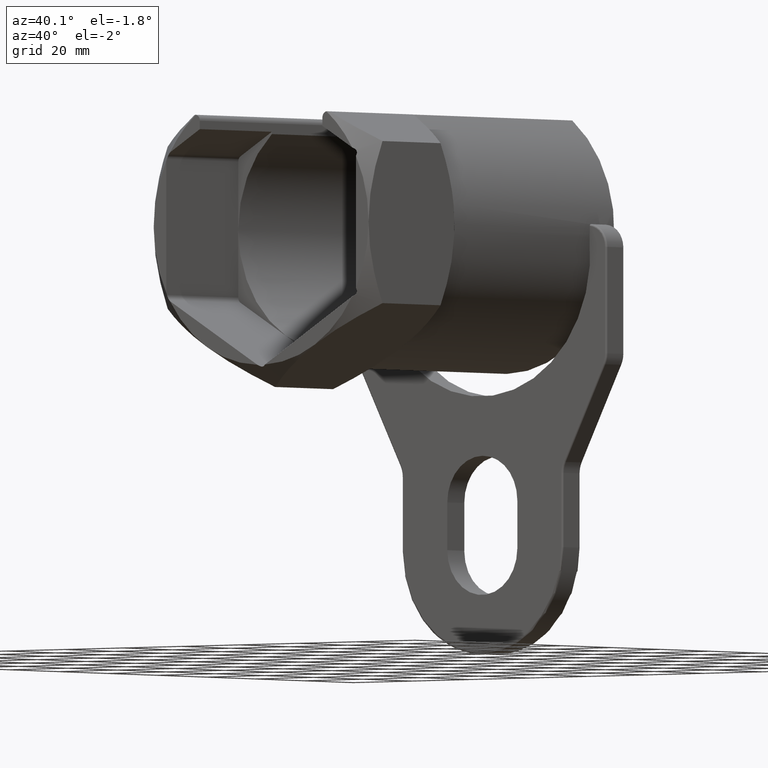
[diagram: clean part render]
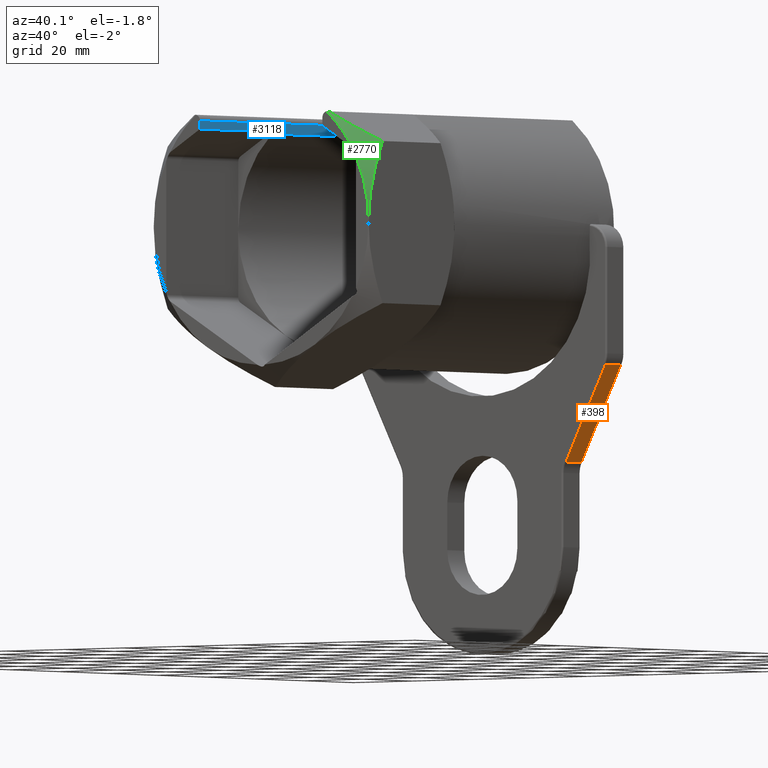
[diagram: same view with three faces highlighted in distinct colors, each labeled with its STEP entity id]
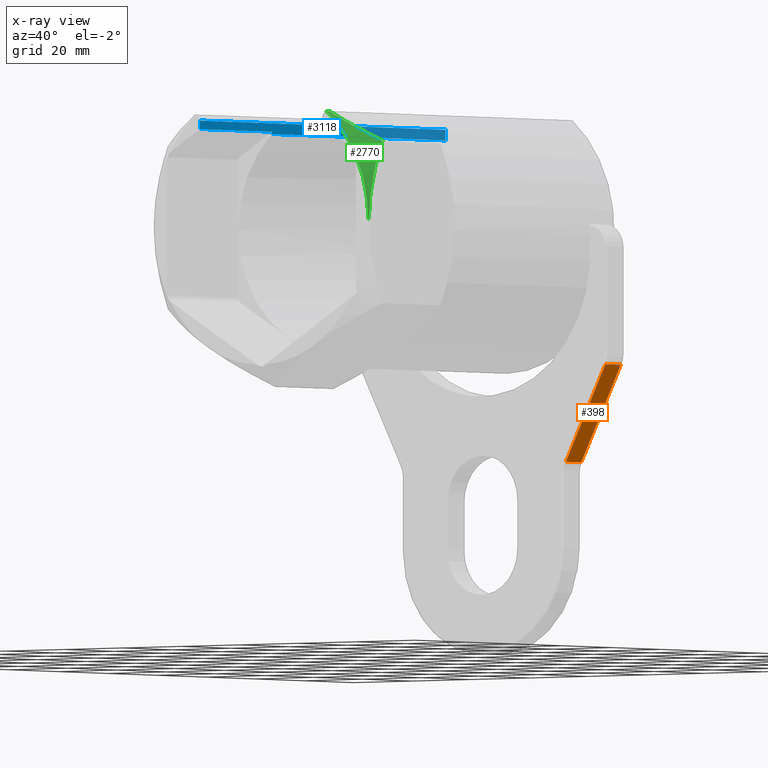
[diagram: x-ray of the same camera — body ghosted, the three highlighted faces saturated]
A machine part, auxiliary view with three faces highlighted in distinct colors.
The next image is the same camera in x-ray (body ghosted, the three faces saturated) — at least one of them is partly hidden behind the body in this view.
Their STEP definitions:

[orange] entity #398 — the highlighted planar face has unit normal (-0.8815, 0, 0.4722).
#361 = EDGE_CURVE ( 'NONE', #375, #376, #1280, .T. ) ;
#375 = VERTEX_POINT ( 'NONE', #1303 ) ;
#376 = VERTEX_POINT ( 'NONE', #1302 ) ;
#381 = ORIENTED_EDGE ( 'NONE', *, *, #387, .F. ) ;
#382 = ORIENTED_EDGE ( 'NONE', *, *, #392, .T. ) ;
#387 = EDGE_CURVE ( 'NONE', #388, #389, #1286, .T. ) ;
#388 = VERTEX_POINT ( 'NONE', #1282 ) ;
#389 = VERTEX_POINT ( 'NONE', #1281 ) ;
#392 = EDGE_CURVE ( 'NONE', #388, #375, #1347, .T. ) ;
#393 = EDGE_CURVE ( 'NONE', #376, #389, #1343, .T. ) ;
#394 = ORIENTED_EDGE ( 'NONE', *, *, #361, .T. ) ;
#396 = EDGE_LOOP ( 'NONE', ( #381, #382, #394, #397 ) ) ;
#397 = ORIENTED_EDGE ( 'NONE', *, *, #393, .T. ) ;
#398 = ADVANCED_FACE ( 'NONE', ( #1335 ), #1334, .F. ) ;
#1277 = DIRECTION ( 'NONE',  ( 0.0000000000000000000, -1.000000000000000000, 0.0000000000000000000 ) ) ;
#1278 = VECTOR ( 'NONE', #1277, 1000.000000000000000 ) ;
#1279 = CARTESIAN_POINT ( 'NONE',  ( 41.77702781717557900, 97.19999999999998900, -35.34954807460559300 ) ) ;
#1280 = LINE ( 'NONE', #1279, #1278 ) ;
#1281 = CARTESIAN_POINT ( 'NONE',  ( 28.22297218282443200, 90.50000000000000000, -60.65045192539439300 ) ) ;
#1282 = CARTESIAN_POINT ( 'NONE',  ( 28.22297218282443200, 96.69999999999998900, -60.65045192539439300 ) ) ;
#1283 = DIRECTION ( 'NONE',  ( 0.0000000000000000000, -1.000000000000000000, 0.0000000000000000000 ) ) ;
#1284 = VECTOR ( 'NONE', #1283, 1000.000000000000000 ) ;
#1285 = CARTESIAN_POINT ( 'NONE',  ( 28.22297218282443200, 97.19999999999998900, -60.65045192539439300 ) ) ;
#1286 = LINE ( 'NONE', #1285, #1284 ) ;
#1302 = CARTESIAN_POINT ( 'NONE',  ( 41.77702781717557900, 90.50000000000000000, -35.34954807460559300 ) ) ;
#1303 = CARTESIAN_POINT ( 'NONE',  ( 41.77702781717557900, 96.69999999999998900, -35.34954807460559300 ) ) ;
#1330 = DIRECTION ( 'NONE',  ( 0.4722214125154191000, 0.0000000000000000000, 0.8814799700287819800 ) ) ;
#1331 = DIRECTION ( 'NONE',  ( -0.8814799700287819800, 0.0000000000000000000, 0.4722214125154191000 ) ) ;
#1332 = CARTESIAN_POINT ( 'NONE',  ( 41.77702781717557900, 97.19999999999998900, -35.34954807460559300 ) ) ;
#1333 = AXIS2_PLACEMENT_3D ( 'NONE', #1332, #1331, #1330 ) ;
#1334 = PLANE ( 'NONE',  #1333 ) ;
#1335 = FACE_OUTER_BOUND ( 'NONE', #396, .T. ) ;
#1340 = DIRECTION ( 'NONE',  ( -0.4722214125154191000, 0.0000000000000000000, -0.8814799700287819800 ) ) ;
#1341 = VECTOR ( 'NONE', #1340, 1000.000000000000000 ) ;
#1342 = CARTESIAN_POINT ( 'NONE',  ( 41.77702781717557900, 90.50000000000000000, -35.34954807460559300 ) ) ;
#1343 = LINE ( 'NONE', #1342, #1341 ) ;
#1344 = DIRECTION ( 'NONE',  ( 0.4722214125154191000, 0.0000000000000000000, 0.8814799700287819800 ) ) ;
#1345 = VECTOR ( 'NONE', #1344, 1000.000000000000000 ) ;
#1346 = CARTESIAN_POINT ( 'NONE',  ( 41.77702781717557900, 96.69999999999998900, -35.34954807460559300 ) ) ;
#1347 = LINE ( 'NONE', #1346, #1345 ) ;

[blue] entity #3118 — the highlighted planar face has unit normal (-1, 0, 0).
#1918 = DIRECTION ( 'NONE',  ( 0.0000000000000000000, -1.000000000000000000, 0.0000000000000000000 ) ) ;
#1919 = VECTOR ( 'NONE', #1918, 1000.000000000000000 ) ;
#1920 = CARTESIAN_POINT ( 'NONE',  ( -21.00000000000000000, 35.00000000000000000, 24.80423350962492200 ) ) ;
#1921 = LINE ( 'NONE', #1920, #1919 ) ;
#2186 = CARTESIAN_POINT ( 'NONE',  ( -21.00000000000000000, 29.30597966083865200, 24.80423350962492200 ) ) ;
#2187 = CARTESIAN_POINT ( 'NONE',  ( -21.00000000000000000, 29.30597966083865200, 25.40341184434353000 ) ) ;
#2198 = DIRECTION ( 'NONE',  ( 0.0000000000000000000, 1.000000000000000000, 0.0000000000000000000 ) ) ;
#2199 = VECTOR ( 'NONE', #2198, 1000.000000000000000 ) ;
#2200 = CARTESIAN_POINT ( 'NONE',  ( -21.00000000000000000, 35.00000000000000000, 25.40341184434353000 ) ) ;
#2201 = LINE ( 'NONE', #2200, #2199 ) ;
#2234 = DIRECTION ( 'NONE',  ( 0.0000000000000000000, -1.000000000000000000, 0.0000000000000000000 ) ) ;
#2235 = VECTOR ( 'NONE', #2234, 1000.000000000000000 ) ;
#2236 = CARTESIAN_POINT ( 'NONE',  ( -20.99999999999999600, 35.00000000000000000, 27.60436305490764800 ) ) ;
#2237 = LINE ( 'NONE', #2236, #2235 ) ;
#2238 = DIRECTION ( 'NONE',  ( -1.245446459869073900E-015, 0.0000000000000000000, -1.000000000000000000 ) ) ;
#2239 = VECTOR ( 'NONE', #2238, 1000.000000000000000 ) ;
#2240 = CARTESIAN_POINT ( 'NONE',  ( -21.00000000000000000, 29.30597966083865200, 24.80423350962492200 ) ) ;
#2241 = LINE ( 'NONE', #2240, #2239 ) ;
#2416 = PLANE ( 'NONE',  #2463 ) ;
#2419 = FACE_OUTER_BOUND ( 'NONE', #3115, .T. ) ;
#2443 = CARTESIAN_POINT ( 'NONE',  ( -21.00000000000000000, 100.0000000000000000, 24.80423350962492200 ) ) ;
#2448 = DIRECTION ( 'NONE',  ( 0.0000000000000000000, 0.0000000000000000000, -1.000000000000000000 ) ) ;
#2449 = VECTOR ( 'NONE', #2448, 1000.000000000000000 ) ;
#2450 = CARTESIAN_POINT ( 'NONE',  ( -21.00000000000000000, 100.0000000000000000, 30.22714241859568000 ) ) ;
#2451 = LINE ( 'NONE', #2450, #2449 ) ;
#2458 = CARTESIAN_POINT ( 'NONE',  ( -21.00000000000000000, 100.0000000000000000, 27.60436305490764800 ) ) ;
#2460 = DIRECTION ( 'NONE',  ( 1.245446459869073900E-015, 0.0000000000000000000, 1.000000000000000000 ) ) ;
#2461 = DIRECTION ( 'NONE',  ( -1.000000000000000000, 0.0000000000000000000, 1.245446459869073900E-015 ) ) ;
#2462 = CARTESIAN_POINT ( 'NONE',  ( -21.00000000000000000, 35.00000000000000000, 24.80423350962492200 ) ) ;
#2463 = AXIS2_PLACEMENT_3D ( 'NONE', #2462, #2461, #2460 ) ;
#2473 = DIRECTION ( 'NONE',  ( -1.245446459869073900E-015, 0.0000000000000000000, -1.000000000000000000 ) ) ;
#2474 = VECTOR ( 'NONE', #2473, 1000.000000000000000 ) ;
#2475 = CARTESIAN_POINT ( 'NONE',  ( -21.00000000000000000, 0.0000000000000000000, 24.80423350962492200 ) ) ;
#2476 = LINE ( 'NONE', #2475, #2474 ) ;
#2506 = CARTESIAN_POINT ( 'NONE',  ( -21.00000000000000000, 0.0000000000000000000, 25.40341184434353000 ) ) ;
#2507 = CARTESIAN_POINT ( 'NONE',  ( -20.99999999999999600, 0.0000000000000000000, 27.60436305490764800 ) ) ;
#2857 = ORIENTED_EDGE ( 'NONE', *, *, #2862, .F. ) ;
#2862 = EDGE_CURVE ( 'NONE', #3127, #3037, #1921, .T. ) ;
#3032 = ORIENTED_EDGE ( 'NONE', *, *, #3039, .T. ) ;
#3035 = EDGE_CURVE ( 'NONE', #3137, #3036, #2201, .T. ) ;
#3036 = VERTEX_POINT ( 'NONE', #2187 ) ;
#3037 = VERTEX_POINT ( 'NONE', #2186 ) ;
#3039 = EDGE_CURVE ( 'NONE', #3036, #3037, #2241, .T. ) ;
#3040 = ORIENTED_EDGE ( 'NONE', *, *, #3035, .T. ) ;
#3042 = ORIENTED_EDGE ( 'NONE', *, *, #3141, .T. ) ;
#3043 = EDGE_CURVE ( 'NONE', #3123, #3135, #2237, .T. ) ;
#3044 = ORIENTED_EDGE ( 'NONE', *, *, #3043, .T. ) ;
#3115 = EDGE_LOOP ( 'NONE', ( #3122, #3044, #3042, #3040, #3032, #2857 ) ) ;
#3118 = ADVANCED_FACE ( 'NONE', ( #2419 ), #2416, .F. ) ;
#3122 = ORIENTED_EDGE ( 'NONE', *, *, #3124, .F. ) ;
#3123 = VERTEX_POINT ( 'NONE', #2458 ) ;
#3124 = EDGE_CURVE ( 'NONE', #3123, #3127, #2451, .T. ) ;
#3127 = VERTEX_POINT ( 'NONE', #2443 ) ;
#3135 = VERTEX_POINT ( 'NONE', #2507 ) ;
#3137 = VERTEX_POINT ( 'NONE', #2506 ) ;
#3141 = EDGE_CURVE ( 'NONE', #3135, #3137, #2476, .T. ) ;

[green] entity #2770 — the highlighted conical surface has half-angle 45 deg.
#58 = VERTEX_POINT ( 'NONE', #660 ) ;
#71 = EDGE_CURVE ( 'NONE', #58, #73, #748, .T. ) ;
#73 = VERTEX_POINT ( 'NONE', #733 ) ;
#461 = ORIENTED_EDGE ( 'NONE', *, *, #463, .F. ) ;
#462 = ORIENTED_EDGE ( 'NONE', *, *, #3101, .T. ) ;
#463 = EDGE_CURVE ( 'NONE', #3096, #2791, #1450, .T. ) ;
#472 = ORIENTED_EDGE ( 'NONE', *, *, #2849, .T. ) ;
#660 = CARTESIAN_POINT ( 'NONE',  ( 36.80607966083862700, 5.693920339161338400, 21.25000000000000400 ) ) ;
#733 = CARTESIAN_POINT ( 'NONE',  ( 23.40000000000000900, 0.4495281664648166900, 28.99000370096274200 ) ) ;
#735 = CARTESIAN_POINT ( 'NONE',  ( 23.40000000000000900, 0.4495281664648166900, 28.99000370096274200 ) ) ;
#736 = CARTESIAN_POINT ( 'NONE',  ( 23.98662370341564600, 0.5544371256417507400, 28.65131634788270900 ) ) ;
#737 = CARTESIAN_POINT ( 'NONE',  ( 24.57435301818651400, 0.6776905367642722700, 28.31199066978911100 ) ) ;
#738 = CARTESIAN_POINT ( 'NONE',  ( 25.74157034900106600, 0.9571069081057185200, 27.63809742964052100 ) ) ;
#739 = CARTESIAN_POINT ( 'NONE',  ( 26.32013817743593600, 1.112930217563038400, 27.30406113814921600 ) ) ;
#740 = CARTESIAN_POINT ( 'NONE',  ( 28.04198013715367600, 1.624714255263372000, 26.30995521920417700 ) ) ;
#741 = CARTESIAN_POINT ( 'NONE',  ( 29.17141960628753600, 2.024903212726354900, 25.65787303766635200 ) ) ;
#742 = CARTESIAN_POINT ( 'NONE',  ( 32.51361028145123600, 3.372936491800365500, 23.72825835167753900 ) ) ;
#743 = CARTESIAN_POINT ( 'NONE',  ( 34.68068009035206200, 4.466820325005418400, 22.47710001415593000 ) ) ;
#744 = CARTESIAN_POINT ( 'NONE',  ( 36.80607966083862700, 5.693920339161338400, 21.25000000000000400 ) ) ;
#748 = B_SPLINE_CURVE_WITH_KNOTS ( 'NONE', 3,
 ( #744, #743, #742, #741, #740, #739, #738, #737, #736, #735 ),
 .UNSPECIFIED., .F., .F.,
 ( 4, 2, 2, 2, 4 ),
 ( 0.03299685162086357000, 0.04116897406752002100, 0.04525503529084824700, 0.04729806590251236400, 0.04934109651417648000 ),
 .UNSPECIFIED. ) ;
#1446 = CARTESIAN_POINT ( 'NONE',  ( 32.49999999999999300, 0.2684398910045975300, 17.84012331795959500 ) ) ;
#1447 = CARTESIAN_POINT ( 'NONE',  ( 32.49999999999999300, 0.1780807539252705400, 17.65234313647608700 ) ) ;
#1448 = CARTESIAN_POINT ( 'NONE',  ( 32.49999999999999300, 0.08858982540145979300, 17.46408924687121100 ) ) ;
#1449 = CARTESIAN_POINT ( 'NONE',  ( 32.49999999999999300, 0.0000000000000000000, 17.27534370135653700 ) ) ;
#1450 = B_SPLINE_CURVE_WITH_KNOTS ( 'NONE', 3,
 ( #1449, #1448, #1447, #1446 ),
 .UNSPECIFIED., .F., .F.,
 ( 4, 4 ),
 ( 0.03031410839248205300, 0.03093755678168470800 ),
 .UNSPECIFIED. ) ;
#1680 = CARTESIAN_POINT ( 'NONE',  ( 22.41475092430788500, 0.0000000000000000000, 29.19360274103279500 ) ) ;
#1681 = CARTESIAN_POINT ( 'NONE',  ( 22.56885655503433700, 0.1080976741123815500, 29.21156600101194600 ) ) ;
#1682 = CARTESIAN_POINT ( 'NONE',  ( 22.73180874316277700, 0.2050440781883542700, 29.20806791045040300 ) ) ;
#1683 = CARTESIAN_POINT ( 'NONE',  ( 23.06776237207546700, 0.3620591962424687400, 29.14398676599289900 ) ) ;
#1684 = CARTESIAN_POINT ( 'NONE',  ( 23.23749513939709700, 0.4204665794751019600, 29.08382592597644500 ) ) ;
#1685 = CARTESIAN_POINT ( 'NONE',  ( 23.40000000000000900, 0.4495281664648166900, 28.99000370096274200 ) ) ;
#1689 = B_SPLINE_CURVE_WITH_KNOTS ( 'NONE', 3,
 ( #1685, #1684, #1683, #1682, #1681, #1680 ),
 .UNSPECIFIED., .F., .F.,
 ( 4, 2, 4 ),
 ( 1.626303258728256700E-019, 0.0005593888226538442100, 0.001118777645307688400 ),
 .UNSPECIFIED. ) ;
#1702 = DIRECTION ( 'NONE',  ( 0.0000000000000000000, 0.0000000000000000000, -1.000000000000000000 ) ) ;
#1703 = DIRECTION ( 'NONE',  ( 0.0000000000000000000, 1.000000000000000000, 0.0000000000000000000 ) ) ;
#1704 = CARTESIAN_POINT ( 'NONE',  ( 0.0000000000000000000, 0.0000000000000000000, 0.0000000000000000000 ) ) ;
#1705 = AXIS2_PLACEMENT_3D ( 'NONE', #1704, #1703, #1702 ) ;
#1706 = CONICAL_SURFACE ( 'NONE', #1705, 36.80607966083862700, 0.7853981633974501700 ) ;
#1707 = CARTESIAN_POINT ( 'NONE',  ( 31.21088650448224300, 0.0000000000000000000, 19.50815377231599300 ) ) ;
#1708 = CARTESIAN_POINT ( 'NONE',  ( 31.37431298413548900, 0.08857250528352810000, 19.41379945029548200 ) ) ;
#1709 = CARTESIAN_POINT ( 'NONE',  ( 31.53734617778312800, 0.1780632987203767400, 19.31967219205617400 ) ) ;
#1710 = CARTESIAN_POINT ( 'NONE',  ( 31.70000000000013800, 0.2684398910046001400, 19.22576396401446200 ) ) ;
#1711 = FACE_OUTER_BOUND ( 'NONE', #2745, .T. ) ;
#1712 = B_SPLINE_CURVE_WITH_KNOTS ( 'NONE', 3,
 ( #1710, #1709, #1708, #1707 ),
 .UNSPECIFIED., .F., .F.,
 ( 4, 4 ),
 ( 0.01577745623827359100, 0.01640270910458595200 ),
 .UNSPECIFIED. ) ;
#1713 = CARTESIAN_POINT ( 'NONE',  ( 31.70000000000013800, 0.2684398910046001400, 19.22576396401446200 ) ) ;
#1751 = CARTESIAN_POINT ( 'NONE',  ( 32.49999999999999300, 0.2684398910045975300, 17.84012331795959500 ) ) ;
#1753 = CARTESIAN_POINT ( 'NONE',  ( 32.49999999999999300, 0.2684398910045975300, 17.84012331795959500 ) ) ;
#1754 = CARTESIAN_POINT ( 'NONE',  ( 32.49999999999997900, 0.3951747709907975100, 18.10349788674517100 ) ) ;
#1755 = CARTESIAN_POINT ( 'NONE',  ( 32.43160290792378900, 0.4743448155764205000, 18.38768089511448200 ) ) ;
#1756 = CARTESIAN_POINT ( 'NONE',  ( 32.21189576170274200, 0.4740775901073544000, 18.76766641797772600 ) ) ;
#1757 = CARTESIAN_POINT ( 'NONE',  ( 32.12409552522687800, 0.4551507760789904600, 18.88016337850708800 ) ) ;
#1758 = CARTESIAN_POINT ( 'NONE',  ( 31.92218207022360600, 0.3829194122989094100, 19.07917012810740700 ) ) ;
#1759 = CARTESIAN_POINT ( 'NONE',  ( 31.81396973608021400, 0.3317657706554367200, 19.15996350620915600 ) ) ;
#1760 = CARTESIAN_POINT ( 'NONE',  ( 31.70000000000013800, 0.2684398910046001400, 19.22576396401446200 ) ) ;
#1761 = B_SPLINE_CURVE_WITH_KNOTS ( 'NONE', 3,
 ( #1760, #1759, #1758, #1757, #1756, #1755, #1754, #1753 ),
 .UNSPECIFIED., .F., .F.,
 ( 4, 2, 2, 4 ),
 ( 1.580842615198918900E-016, 0.0004331990296483341300, 0.0008663980592965101900, 0.001732796118592862300 ),
 .UNSPECIFIED. ) ;
#1837 = B_SPLINE_CURVE_WITH_KNOTS ( 'NONE', 3,
 ( #1883, #1882, #1881, #1880, #1879, #1878, #1877, #1876, #1875, #1874, #1873, #1872 ),
 .UNSPECIFIED., .F., .F.,
 ( 4, 2, 2, 2, 2, 4 ),
 ( 0.05119262987176091000, 0.05670535293450426600, 0.06221807599724762900, 0.06497443752861931100, 0.06773079905999099300, 0.07324352212273434200 ),
 .UNSPECIFIED. ) ;
#1872 = CARTESIAN_POINT ( 'NONE',  ( 36.80607966083862700, 5.693920339161338400, 21.25000000000000400 ) ) ;
#1873 = CARTESIAN_POINT ( 'NONE',  ( 36.80607966083862700, 4.871377124766469900, 19.60491357121027200 ) ) ;
#1874 = CARTESIAN_POINT ( 'NONE',  ( 36.80607966083863400, 4.103940615462435400, 17.92815545749138900 ) ) ;
#1875 = CARTESIAN_POINT ( 'NONE',  ( 36.80607966083862000, 3.064410607342599800, 15.34886376903153900 ) ) ;
#1876 = CARTESIAN_POINT ( 'NONE',  ( 36.80607966083862700, 2.736376756132704400, 14.47768753374924300 ) ) ;
#1877 = CARTESIAN_POINT ( 'NONE',  ( 36.80607966083862700, 2.124914092050519200, 12.71297964382443600 ) ) ;
#1878 = CARTESIAN_POINT ( 'NONE',  ( 36.80607966083862700, 1.843937679136436100, 11.82649064865160300 ) ) ;
#1879 = CARTESIAN_POINT ( 'NONE',  ( 36.80607966083862700, 1.082624410249944000, 9.153390569379297400 ) ) ;
#1880 = CARTESIAN_POINT ( 'NONE',  ( 36.80607966083862000, 0.6840636695007539200, 7.353119640918092300 ) ) ;
#1881 = CARTESIAN_POINT ( 'NONE',  ( 36.80607966083862700, 0.1426093981861342500, 3.709871251776945200 ) ) ;
#1882 = CARTESIAN_POINT ( 'NONE',  ( 36.80607966083862000, -1.524659305057740100E-016, 1.866846329756121500 ) ) ;
#1883 = CARTESIAN_POINT ( 'NONE',  ( 36.80607966083862700, 0.0000000000000000000, 0.0000000000000000000 ) ) ;
#2216 = DIRECTION ( 'NONE',  ( 0.0000000000000000000, 0.0000000000000000000, 1.000000000000000000 ) ) ;
#2217 = DIRECTION ( 'NONE',  ( 0.0000000000000000000, 1.000000000000000000, 0.0000000000000000000 ) ) ;
#2218 = CARTESIAN_POINT ( 'NONE',  ( 0.0000000000000000000, 0.0000000000000000000, 0.0000000000000000000 ) ) ;
#2219 = AXIS2_PLACEMENT_3D ( 'NONE', #2218, #2217, #2216 ) ;
#2220 = CIRCLE ( 'NONE', #2219, 36.80607966083862700 ) ;
#2221 = CARTESIAN_POINT ( 'NONE',  ( 22.41475092430788500, 0.0000000000000000000, 29.19360274103279500 ) ) ;
#2222 = CARTESIAN_POINT ( 'NONE',  ( 31.21088650448224300, 0.0000000000000000000, 19.50815377231599300 ) ) ;
#2394 = DIRECTION ( 'NONE',  ( 0.0000000000000000000, 0.0000000000000000000, 1.000000000000000000 ) ) ;
#2395 = DIRECTION ( 'NONE',  ( 0.0000000000000000000, 1.000000000000000000, 0.0000000000000000000 ) ) ;
#2396 = CARTESIAN_POINT ( 'NONE',  ( 0.0000000000000000000, 0.0000000000000000000, 0.0000000000000000000 ) ) ;
#2397 = AXIS2_PLACEMENT_3D ( 'NONE', #2396, #2395, #2394 ) ;
#2398 = CIRCLE ( 'NONE', #2397, 36.80607966083862700 ) ;
#2406 = CARTESIAN_POINT ( 'NONE',  ( 32.49999999999999300, 0.0000000000000000000, 17.27534370135653700 ) ) ;
#2407 = CARTESIAN_POINT ( 'NONE',  ( 36.80607966083862700, 0.0000000000000000000, 0.0000000000000000000 ) ) ;
#2743 = ORIENTED_EDGE ( 'NONE', *, *, #71, .T. ) ;
#2744 = EDGE_CURVE ( 'NONE', #73, #3054, #1689, .T. ) ;
#2745 = EDGE_LOOP ( 'NONE', ( #2743, #2746, #2754, #2753, #2760, #461, #462, #472 ) ) ;
#2746 = ORIENTED_EDGE ( 'NONE', *, *, #2744, .T. ) ;
#2753 = ORIENTED_EDGE ( 'NONE', *, *, #2769, .F. ) ;
#2754 = ORIENTED_EDGE ( 'NONE', *, *, #3056, .T. ) ;
#2760 = ORIENTED_EDGE ( 'NONE', *, *, #2789, .T. ) ;
#2764 = VERTEX_POINT ( 'NONE', #1713 ) ;
#2769 = EDGE_CURVE ( 'NONE', #2764, #3053, #1712, .T. ) ;
#2770 = ADVANCED_FACE ( 'NONE', ( #1711 ), #1706, .T. ) ;
#2789 = EDGE_CURVE ( 'NONE', #2764, #2791, #1761, .T. ) ;
#2791 = VERTEX_POINT ( 'NONE', #1751 ) ;
#2849 = EDGE_CURVE ( 'NONE', #3095, #58, #1837, .T. ) ;
#3053 = VERTEX_POINT ( 'NONE', #2222 ) ;
#3054 = VERTEX_POINT ( 'NONE', #2221 ) ;
#3056 = EDGE_CURVE ( 'NONE', #3054, #3053, #2220, .T. ) ;
#3095 = VERTEX_POINT ( 'NONE', #2407 ) ;
#3096 = VERTEX_POINT ( 'NONE', #2406 ) ;
#3101 = EDGE_CURVE ( 'NONE', #3096, #3095, #2398, .T. ) ;